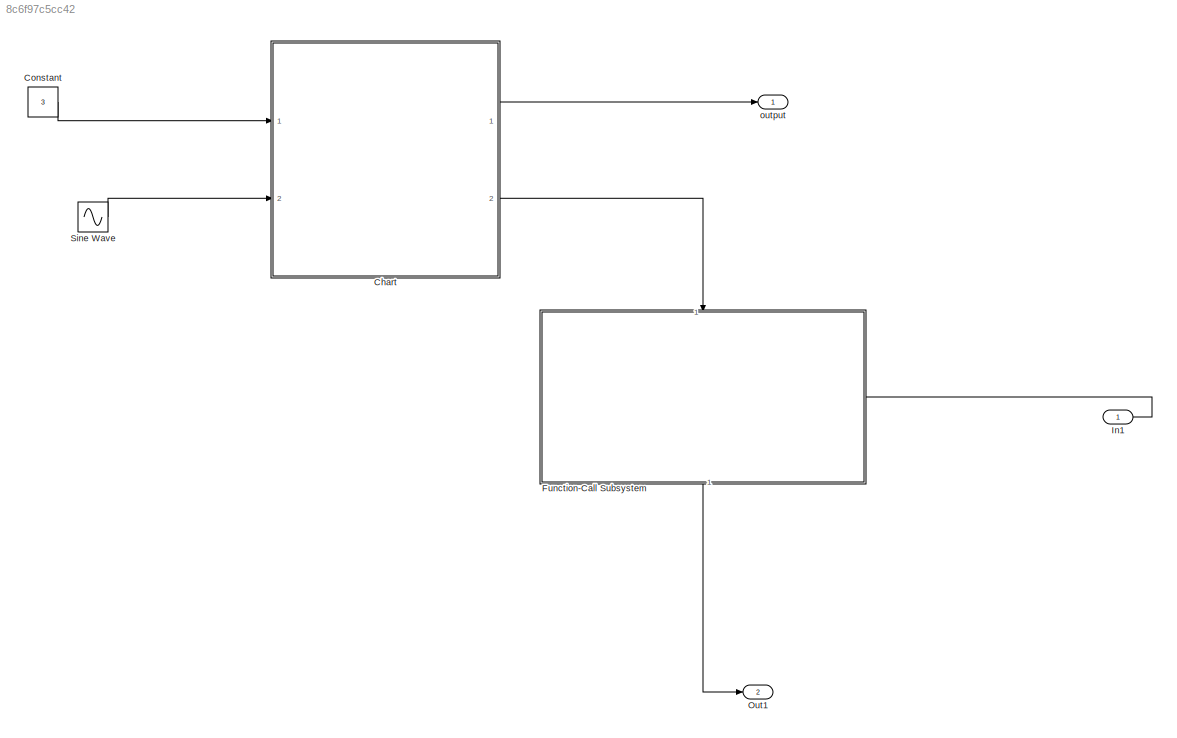
MODEL slx_8c6f97c5cc42
KIND model
CONFIG AbsTol = auto
CONFIG EnableMultiTasking = off
CONFIG FixedStep = auto
CONFIG MaxStep = auto
CONFIG MinStep = auto
CONFIG RelTol = 1e-3
CONFIG SampleTimeConstraint = Unconstrained
CONFIG SolverName = VariableStepAuto
CONFIG StartTime = 0.0
CONFIG StopTime = inf
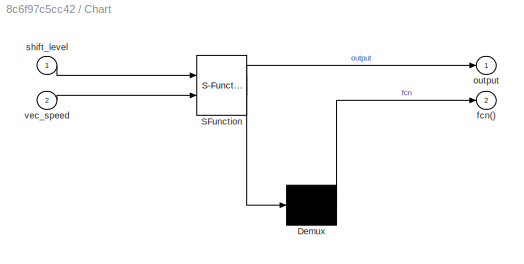
BLOCK [SubSystem] Chart
  ErrorFcn = Stateflow.Translate.translate
  PermitHierarchicalResolution = ExplicitOnly
  Ports = [2, 2]
  RequestExecContextInheritance = off
  SFBlockType = Chart
  TreatAsAtomicUnit = on
BLOCK [Demux] Chart/ Demux 
  Outputs = 1
  Ports = [1, 1]
BLOCK [S-Function] Chart/ SFunction 
  EnableBusSupport = on
  FunctionName = sf_sfun
  Parameters = DD,NN,PP,RR
  PortCounts = [2 2]
  Ports = [2, 2]
  SFcnIsStateOwnerBlock = off
  SFunctionDeploymentMode = off
  Tag = Stateflow S-Function 3
BLOCK [Outport] Chart/fcn()
  Port = 2
BLOCK [Outport] Chart/output
BLOCK [Inport] Chart/shift_level
BLOCK [Inport] Chart/vec_speed
  Port = 2
BLOCK [Constant] Constant
  Value = 3
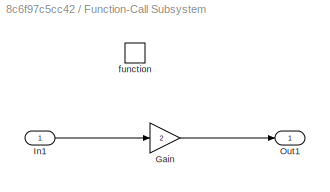
BLOCK [SubSystem] Function-Call Subsystem
  NameLocation = left
  Ports = [1, 1, 0, 1]
  RequestExecContextInheritance = off
  TreatAsAtomicUnit = on
BLOCK [Gain] Function-Call Subsystem/Gain
  Gain = 2
BLOCK [Inport] Function-Call Subsystem/In1
BLOCK [Outport] Function-Call Subsystem/Out1
BLOCK [TriggerPort] Function-Call Subsystem/function
  Ports = []
  StatesWhenEnabling = held
  TriggerType = function-call
  VariantControl = (inherit)
BLOCK [Inport] In1
BLOCK [Outport] Out1
  Port = 2
BLOCK [Sin] Sine Wave
  Amplitude = 80
  Ports = [0, 1]
  SampleTime = 0
BLOCK [Outport] output
LINE Chart:1 -> output:1
LINE Chart:2 -> Function-Call Subsystem:1
LINE Constant:1 -> Chart:1
LINE Function-Call Subsystem/Gain:1 -> Function-Call Subsystem/Out1:1
LINE Function-Call Subsystem/In1:1 -> Function-Call Subsystem/Gain:1
LINE Function-Call Subsystem:1 -> Out1:1
LINE In1:1 -> Function-Call Subsystem:trigger
LINE Sine Wave:1 -> Chart:2
CHART Chart states=8 transitions=14
  STATE_LABEL 'D'
  STATE_LABEL 'D1\nen:\noutput=10;'
  STATE_LABEL 'D2\nen:\noutput=20;'
  STATE_LABEL 'D3\nen:\noutput=30;'
  STATE_LABEL 'D4\nen:\noutput=40;'
  STATE_LABEL '[vec_speed>30]'
  STATE_LABEL '[vec_speed>50]'
  STATE_LABEL '[vec_speed>70]'
  STATE_LABEL '[vec_speed<25]'
  STATE_LABEL '[vec_speed<45]'
  STATE_LABEL '[vec_speed<65]'
  STATE_LABEL 'D1\nen:\noutput=10;'
  STATE_LABEL 'D2\nen:\noutput=20;'
  STATE_LABEL 'D3\nen:\noutput=30;'
  STATE_LABEL 'D4\nen:\noutput=40;'
  STATE_LABEL 'P'
  STATE_LABEL 'R\nen:\nfcn;\ndu:\nfcn;'
  STATE_LABEL 'N'
CHART  states=0 transitions=0
